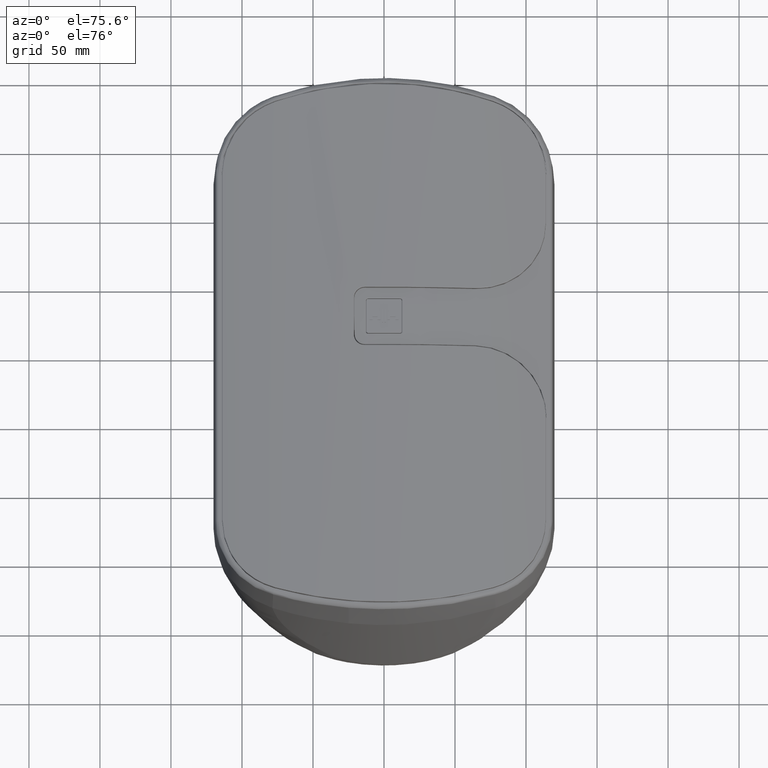
[diagram: clean part render]
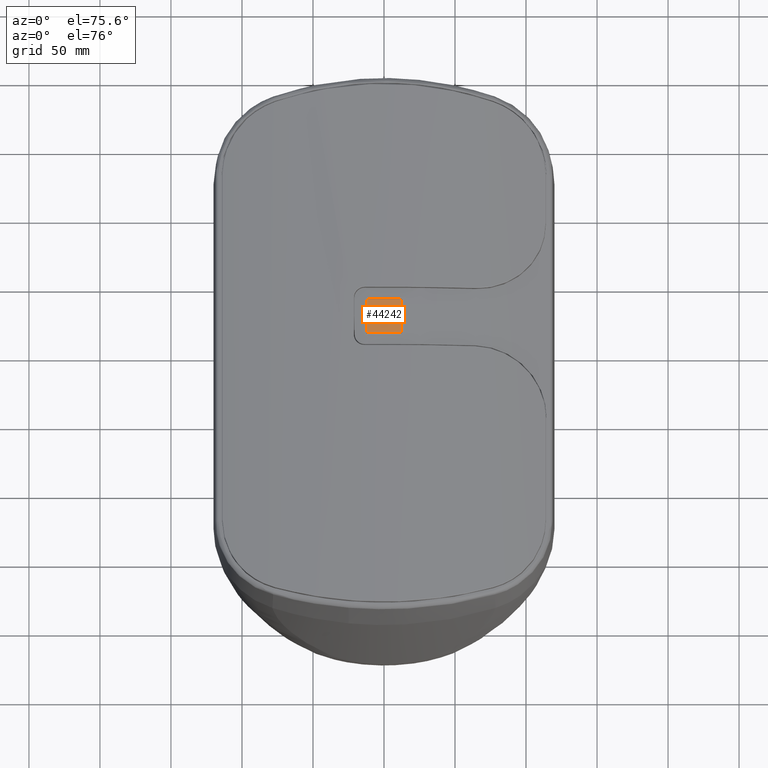
[diagram: same view with one face highlighted and labeled with its STEP entity id]
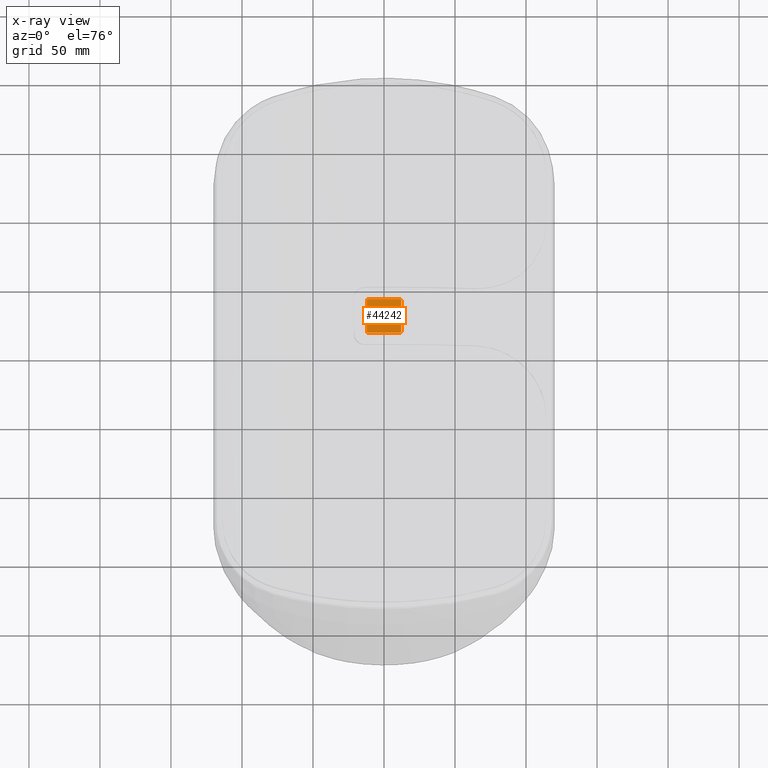
[diagram: x-ray of the same camera — body ghosted, the highlighted face saturated]
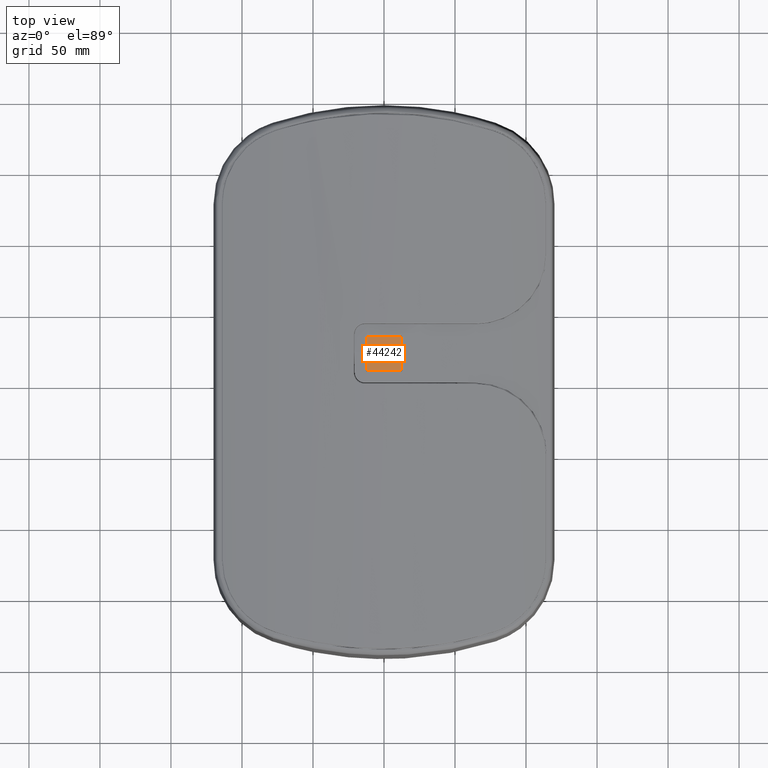
[diagram: same view with one face highlighted and labeled with its STEP entity id]
A machine part, auxiliary view. The second image highlights one B-rep face of the part: STEP entity #44242.
The next image is the same camera in x-ray: the body ghosted, the highlighted face saturated — about 0% of this face is hidden behind the body in this view.
A second angle (top view) of the same face is appended — the face is thin or edge-on in the first view.
In plain terms, the highlighted planar face has unit normal (-0, -0, -1).
Its self-contained STEP definition (entity closure, byte-faithful):
#75 = VERTEX_POINT ( 'NONE', #49523 ) ;
#331 = VERTEX_POINT ( 'NONE', #61434 ) ;
#480 = ORIENTED_EDGE ( 'NONE', *, *, #21752, .F. ) ;
#667 = DIRECTION ( 'NONE',  ( 1.000000000000000000, 5.752909486657777712E-15, 0.0000000000000000000 ) ) ;
#714 = DIRECTION ( 'NONE',  ( -0.0000000000000000000, 5.860545718086125789E-66, 1.000000000000000000 ) ) ;
#806 = ORIENTED_EDGE ( 'NONE', *, *, #60526, .F. ) ;
#822 = VECTOR ( 'NONE', #17895, 1000.000000000000000 ) ;
#1727 = AXIS2_PLACEMENT_3D ( 'NONE', #4709, #48869, #14673 ) ;
#1789 = ORIENTED_EDGE ( 'NONE', *, *, #8905, .F. ) ;
#1853 = AXIS2_PLACEMENT_3D ( 'NONE', #49115, #14604, #39102 ) ;
#2039 = VECTOR ( 'NONE', #36664, 1000.000000000000000 ) ;
#2110 = VECTOR ( 'NONE', #22423, 1000.000000000000000 ) ;
#2516 = CARTESIAN_POINT ( 'NONE',  ( 11.17499999999997229, 59.23523077837343465, 316.9999999999985221 ) ) ;
#2668 = VERTEX_POINT ( 'NONE', #3520 ) ;
#3054 = EDGE_CURVE ( 'NONE', #9763, #9864, #38522, .T. ) ;
#3420 = DIRECTION ( 'NONE',  ( -5.373402872652655282E-132, -5.860545718086125789E-66, -1.000000000000000000 ) ) ;
#3520 = CARTESIAN_POINT ( 'NONE',  ( 12.17499999999997407, 81.58523077837344317, 316.9999999999985221 ) ) ;
#3834 = CARTESIAN_POINT ( 'NONE',  ( 1.400000000000007905, 70.41023077837344601, 316.9999999999985221 ) ) ;
#4071 = VERTEX_POINT ( 'NONE', #53803 ) ;
#4217 = CARTESIAN_POINT ( 'NONE',  ( -4.440000000000068781, 69.63023077837343067, 316.9999999999985221 ) ) ;
#4307 = EDGE_LOOP ( 'NONE', ( #26245, #8414, #24439, #8950, #55774, #6894, #19021, #32851 ) ) ;
#4340 = DIRECTION ( 'NONE',  ( 1.000000000000000000, -8.838604667001395325E-17, 0.0000000000000000000 ) ) ;
#4386 = ORIENTED_EDGE ( 'NONE', *, *, #36080, .F. ) ;
#4709 = CARTESIAN_POINT ( 'NONE',  ( -11.17500000000002913, 81.58523077837344317, 316.9999999999985221 ) ) ;
#4742 = LINE ( 'NONE', #14708, #31885 ) ;
#4792 = ORIENTED_EDGE ( 'NONE', *, *, #57347, .F. ) ;
#5033 = CARTESIAN_POINT ( 'NONE',  ( 4.439999999999994174, 71.19023077837344715, 316.9999999999986358 ) ) ;
#5170 = CARTESIAN_POINT ( 'NONE',  ( -10.08000000000006224, 70.41023077837350286, 316.9999999999985221 ) ) ;
#5545 = DIRECTION ( 'NONE',  ( -1.000000000000000000, 9.168775624546178607E-67, 0.0000000000000000000 ) ) ;
#5886 = VERTEX_POINT ( 'NONE', #62508 ) ;
#5957 = VECTOR ( 'NONE', #46463, 1000.000000000000000 ) ;
#6224 = VERTEX_POINT ( 'NONE', #52744 ) ;
#6289 = ORIENTED_EDGE ( 'NONE', *, *, #30173, .F. ) ;
#6457 = CARTESIAN_POINT ( 'NONE',  ( -1.400000000000061195, 70.41023077837344601, 316.9999999999985221 ) ) ;
#6689 = DIRECTION ( 'NONE',  ( -1.000000000000000000, 9.168775624546178607E-67, 0.0000000000000000000 ) ) ;
#6894 = ORIENTED_EDGE ( 'NONE', *, *, #40860, .T. ) ;
#7034 = AXIS2_PLACEMENT_3D ( 'NONE', #33073, #3420, #23080 ) ;
#7469 = CARTESIAN_POINT ( 'NONE',  ( -3.382710778154773834E-14, 65.66023077837343180, 316.9999999999985221 ) ) ;
#7519 = CARTESIAN_POINT ( 'NONE',  ( 2.480000000000032401, 67.61023077837339201, 316.9999999999985221 ) ) ;
#7787 = LINE ( 'NONE', #7469, #47266 ) ;
#7960 = ORIENTED_EDGE ( 'NONE', *, *, #13370, .F. ) ;
#8084 = LINE ( 'NONE', #31934, #9087 ) ;
#8148 = VECTOR ( 'NONE', #50283, 1000.000000000000000 ) ;
#8414 = ORIENTED_EDGE ( 'NONE', *, *, #24699, .T. ) ;
#8449 = EDGE_CURVE ( 'NONE', #13659, #24833, #22655, .T. ) ;
#8905 = EDGE_CURVE ( 'NONE', #6224, #31372, #34048, .T. ) ;
#8950 = ORIENTED_EDGE ( 'NONE', *, *, #47466, .T. ) ;
#9087 = VECTOR ( 'NONE', #41603, 1000.000000000000000 ) ;
#9181 = CARTESIAN_POINT ( 'NONE',  ( -2.905661822261151883E-14, 69.63023077837343067, 316.9999999999985221 ) ) ;
#9384 = DIRECTION ( 'NONE',  ( -6.814985084194599863E-15, -1.000000000000000000, 0.0000000000000000000 ) ) ;
#9514 = CARTESIAN_POINT ( 'NONE',  ( -0.5400000000000300115, 65.66023077837343180, 316.9999999999985221 ) ) ;
#9763 = VERTEX_POINT ( 'NONE', #41066 ) ;
#9864 = VERTEX_POINT ( 'NONE', #19122 ) ;
#11096 = EDGE_CURVE ( 'NONE', #47290, #53807, #33160, .T. ) ;
#12085 = FACE_BOUND ( 'NONE', #47712, .T. ) ;
#12597 = CARTESIAN_POINT ( 'NONE',  ( 8.119999999999999218, 70.41023077837350286, 316.9999999999985221 ) ) ;
#12722 = LINE ( 'NONE', #18207, #2110 ) ;
#13099 = VECTOR ( 'NONE', #19525, 1000.000000000000000 ) ;
#13250 = EDGE_CURVE ( 'NONE', #75, #26878, #60355, .T. ) ;
#13370 = EDGE_CURVE ( 'NONE', #52446, #47290, #7787, .T. ) ;
#13497 = VECTOR ( 'NONE', #21647, 1000.000000000000000 ) ;
#13659 = VERTEX_POINT ( 'NONE', #47375 ) ;
#14065 = EDGE_CURVE ( 'NONE', #53807, #55710, #32789, .T. ) ;
#14156 = DIRECTION ( 'NONE',  ( -6.870191984066429027E-15, -1.000000000000000000, 0.0000000000000000000 ) ) ;
#14509 = CARTESIAN_POINT ( 'NONE',  ( -11.17500000000002913, 82.58523077837342896, 316.9999999999985221 ) ) ;
#14604 = DIRECTION ( 'NONE',  ( -0.0000000000000000000, 5.860545718086125789E-66, 1.000000000000000000 ) ) ;
#14665 = CARTESIAN_POINT ( 'NONE',  ( -12.17500000000002558, 70.41023077837344601, 316.9999999999985221 ) ) ;
#14673 = DIRECTION ( 'NONE',  ( -1.000000000000000000, 0.0000000000000000000, 0.0000000000000000000 ) ) ;
#14708 = CARTESIAN_POINT ( 'NONE',  ( 0.5399999999999736122, 70.41023077837344601, 316.9999999999985221 ) ) ;
#14739 = DIRECTION ( 'NONE',  ( -1.000000000000000000, 9.168775624546178607E-67, 0.0000000000000000000 ) ) ;
#15940 = DIRECTION ( 'NONE',  ( 1.000000000000000000, 1.008560160451554173E-15, 0.0000000000000000000 ) ) ;
#16364 = CIRCLE ( 'NONE', #43168, 1.000000000000000888 ) ;
#16389 = EDGE_CURVE ( 'NONE', #47969, #26580, #31454, .T. ) ;
#16671 = DIRECTION ( 'NONE',  ( -0.0000000000000000000, 5.860545718086125789E-66, 1.000000000000000000 ) ) ;
#16796 = DIRECTION ( 'NONE',  ( -1.000000000000000000, 0.0000000000000000000, 0.0000000000000000000 ) ) ;
#16992 = CARTESIAN_POINT ( 'NONE',  ( 4.770489558936219510E-15, 75.16023077837344601, 316.9999999999985221 ) ) ;
#17232 = VERTEX_POINT ( 'NONE', #56155 ) ;
#17249 = FACE_BOUND ( 'NONE', #28947, .T. ) ;
#17301 = ORIENTED_EDGE ( 'NONE', *, *, #16389, .F. ) ;
#17417 = VECTOR ( 'NONE', #6689, 1000.000000000000000 ) ;
#17428 = VERTEX_POINT ( 'NONE', #4217 ) ;
#17432 = DIRECTION ( 'NONE',  ( 8.587739980083156387E-15, -1.000000000000000000, 0.0000000000000000000 ) ) ;
#17805 = CARTESIAN_POINT ( 'NONE',  ( -8.120000000000082707, 67.61023077837343465, 316.9999999999986358 ) ) ;
#17828 = ORIENTED_EDGE ( 'NONE', *, *, #29758, .F. ) ;
#17841 = CARTESIAN_POINT ( 'NONE',  ( -8.120000000000057838, 71.19023077837344715, 316.9999999999986358 ) ) ;
#17895 = DIRECTION ( 'NONE',  ( 1.000000000000000000, -9.168775624546178607E-67, 0.0000000000000000000 ) ) ;
#18207 = CARTESIAN_POINT ( 'NONE',  ( -1.344410693882025498E-14, 67.61023077837339201, 316.9999999999985221 ) ) ;
#18334 = ORIENTED_EDGE ( 'NONE', *, *, #20427, .F. ) ;
#18700 = VECTOR ( 'NONE', #17432, 1000.000000000000000 ) ;
#19021 = ORIENTED_EDGE ( 'NONE', *, *, #13250, .T. ) ;
#19122 = CARTESIAN_POINT ( 'NONE',  ( -12.17500000000002558, 59.23523077837343465, 316.9999999999985221 ) ) ;
#19302 = EDGE_CURVE ( 'NONE', #31372, #48039, #44705, .T. ) ;
#19336 = EDGE_CURVE ( 'NONE', #55710, #52446, #4742, .T. ) ;
#19525 = DIRECTION ( 'NONE',  ( 9.168775624546446115E-67, -1.000000000000000000, -1.758163715425837737E-65 ) ) ;
#19642 = EDGE_CURVE ( 'NONE', #46892, #2668, #32093, .T. ) ;
#19914 = VERTEX_POINT ( 'NONE', #9514 ) ;
#19931 = CARTESIAN_POINT ( 'NONE',  ( 8.119999999999995666, 71.19023077837344715, 316.9999999999985221 ) ) ;
#20160 = ORIENTED_EDGE ( 'NONE', *, *, #40173, .F. ) ;
#20195 = VECTOR ( 'NONE', #55437, 1000.000000000000000 ) ;
#20229 = VECTOR ( 'NONE', #15940, 1000.000000000000000 ) ;
#20427 = EDGE_CURVE ( 'NONE', #17428, #13659, #28028, .T. ) ;
#20485 = CARTESIAN_POINT ( 'NONE',  ( -2.385244779468109755E-14, 65.66023077837343180, 316.9999999999985221 ) ) ;
#20691 = EDGE_CURVE ( 'NONE', #47488, #21756, #42075, .T. ) ;
#20932 = CARTESIAN_POINT ( 'NONE',  ( -8.120000000000063167, 70.41023077837348865, 316.9999999999986358 ) ) ;
#21139 = EDGE_CURVE ( 'NONE', #24833, #47371, #22354, .T. ) ;
#21195 = CARTESIAN_POINT ( 'NONE',  ( -2.905661822261151883E-14, 73.21023077837344317, 316.9999999999985221 ) ) ;
#21313 = LINE ( 'NONE', #36454, #5957 ) ;
#21321 = CARTESIAN_POINT ( 'NONE',  ( -2.905661822261151883E-14, 82.58523077837342896, 316.9999999999985221 ) ) ;
#21644 = VECTOR ( 'NONE', #33361, 1000.000000000000000 ) ;
#21647 = DIRECTION ( 'NONE',  ( -1.000000000000000000, 9.168775624546178607E-67, 0.0000000000000000000 ) ) ;
#21752 = EDGE_CURVE ( 'NONE', #21756, #47969, #8084, .T. ) ;
#21756 = VERTEX_POINT ( 'NONE', #51301 ) ;
#21775 = LINE ( 'NONE', #20485, #20229 ) ;
#21811 = DIRECTION ( 'NONE',  ( 8.518731355243248448E-15, -1.000000000000000000, 0.0000000000000000000 ) ) ;
#22057 = VERTEX_POINT ( 'NONE', #58983 ) ;
#22093 = VECTOR ( 'NONE', #26087, 1000.000000000000000 ) ;
#22145 = VECTOR ( 'NONE', #43224, 1000.000000000000000 ) ;
#22293 = CARTESIAN_POINT ( 'NONE',  ( -2.480000000000083027, 67.61023077837339201, 316.9999999999985221 ) ) ;
#22354 = LINE ( 'NONE', #62030, #61834 ) ;
#22423 = DIRECTION ( 'NONE',  ( 1.000000000000000000, 5.531643737170955672E-15, 0.0000000000000000000 ) ) ;
#22609 = CARTESIAN_POINT ( 'NONE',  ( -0.5400000000000283462, 70.41023077837344601, 316.9999999999985221 ) ) ;
#22655 = LINE ( 'NONE', #37139, #55633 ) ;
#22944 = CARTESIAN_POINT ( 'NONE',  ( -10.08000000000004448, 73.21023077837344317, 316.9999999999985221 ) ) ;
#23080 = DIRECTION ( 'NONE',  ( -1.000000000000000000, 9.168775624546178607E-67, 0.0000000000000000000 ) ) ;
#23233 = ORIENTED_EDGE ( 'NONE', *, *, #11096, .F. ) ;
#23483 = DIRECTION ( 'NONE',  ( -6.710640814962910492E-15, 1.000000000000000000, 0.0000000000000000000 ) ) ;
#23911 = LINE ( 'NONE', #43592, #62965 ) ;
#24105 = VECTOR ( 'NONE', #55128, 1000.000000000000000 ) ;
#24166 = ORIENTED_EDGE ( 'NONE', *, *, #63219, .F. ) ;
#24428 = VERTEX_POINT ( 'NONE', #17841 ) ;
#24433 = LINE ( 'NONE', #39245, #52979 ) ;
#24439 = ORIENTED_EDGE ( 'NONE', *, *, #56590, .T. ) ;
#24699 = EDGE_CURVE ( 'NONE', #2668, #22057, #28188, .T. ) ;
#24833 = VERTEX_POINT ( 'NONE', #22293 ) ;
#24985 = VERTEX_POINT ( 'NONE', #14509 ) ;
#25072 = EDGE_CURVE ( 'NONE', #331, #24428, #24433, .T. ) ;
#25132 = CARTESIAN_POINT ( 'NONE',  ( -4.440000000000041247, 73.21023077837345738, 316.9999999999985221 ) ) ;
#26087 = DIRECTION ( 'NONE',  ( -7.304098846218134470E-15, -1.000000000000000000, 0.0000000000000000000 ) ) ;
#26196 = CARTESIAN_POINT ( 'NONE',  ( -4.813857645835639687E-14, 67.61023077837337780, 316.9999999999985221 ) ) ;
#26245 = ORIENTED_EDGE ( 'NONE', *, *, #19642, .T. ) ;
#26357 = CARTESIAN_POINT ( 'NONE',  ( 8.120000000000006324, 69.63023077837343067, 316.9999999999985221 ) ) ;
#26580 = VERTEX_POINT ( 'NONE', #7519 ) ;
#26728 = ORIENTED_EDGE ( 'NONE', *, *, #42378, .F. ) ;
#26737 = CARTESIAN_POINT ( 'NONE',  ( -8.120000000000068496, 69.63023077837343067, 316.9999999999986358 ) ) ;
#26878 = VERTEX_POINT ( 'NONE', #37069 ) ;
#26917 = FACE_BOUND ( 'NONE', #53727, .T. ) ;
#27550 = VECTOR ( 'NONE', #667, 1000.000000000000000 ) ;
#27893 = CARTESIAN_POINT ( 'NONE',  ( -2.905661822261151883E-14, 69.63023077837343067, 316.9999999999985221 ) ) ;
#27999 = VERTEX_POINT ( 'NONE', #49937 ) ;
#28028 = LINE ( 'NONE', #58339, #38144 ) ;
#28107 = CARTESIAN_POINT ( 'NONE',  ( 10.08000000000002316, 67.61023077837344886, 316.9999999999985221 ) ) ;
#28188 = CIRCLE ( 'NONE', #57029, 1.000000000000000888 ) ;
#28351 = ORIENTED_EDGE ( 'NONE', *, *, #19336, .F. ) ;
#28947 = EDGE_LOOP ( 'NONE', ( #4792, #51430, #46414, #60198, #17301, #480, #30369, #56805, #17828, #37127, #31690, #20160 ) ) ;
#29038 = EDGE_CURVE ( 'NONE', #56011, #47488, #55189, .T. ) ;
#29092 = LINE ( 'NONE', #48759, #48186 ) ;
#29308 = VECTOR ( 'NONE', #56869, 1000.000000000000000 ) ;
#29381 = CARTESIAN_POINT ( 'NONE',  ( -1.257674520083185143E-14, 67.61023077837339201, 316.9999999999985221 ) ) ;
#29496 = LINE ( 'NONE', #56559, #29308 ) ;
#29758 = EDGE_CURVE ( 'NONE', #27999, #56011, #29496, .T. ) ;
#29967 = LINE ( 'NONE', #20932, #24105 ) ;
#30173 = EDGE_CURVE ( 'NONE', #19914, #34339, #33220, .T. ) ;
#30369 = ORIENTED_EDGE ( 'NONE', *, *, #20691, .F. ) ;
#30402 = VECTOR ( 'NONE', #4340, 1000.000000000000000 ) ;
#30975 = CARTESIAN_POINT ( 'NONE',  ( -2.905661822261151883E-14, 71.19023077837344715, 316.9999999999985221 ) ) ;
#31002 = VERTEX_POINT ( 'NONE', #26357 ) ;
#31372 = VERTEX_POINT ( 'NONE', #17805 ) ;
#31454 = LINE ( 'NONE', #40806, #52711 ) ;
#31690 = ORIENTED_EDGE ( 'NONE', *, *, #56211, .F. ) ;
#31885 = VECTOR ( 'NONE', #44084, 1000.000000000000000 ) ;
#31934 = CARTESIAN_POINT ( 'NONE',  ( -8.543513119185774940E-14, 73.21023077837335791, 316.9999999999985221 ) ) ;
#32077 = FACE_BOUND ( 'NONE', #61998, .T. ) ;
#32093 = LINE ( 'NONE', #57232, #21644 ) ;
#32149 = ORIENTED_EDGE ( 'NONE', *, *, #51598, .F. ) ;
#32729 = DIRECTION ( 'NONE',  ( -4.293869990041608959E-15, 1.000000000000000000, 0.0000000000000000000 ) ) ;
#32789 = LINE ( 'NONE', #16992, #2039 ) ;
#32851 = ORIENTED_EDGE ( 'NONE', *, *, #53237, .T. ) ;
#33073 = CARTESIAN_POINT ( 'NONE',  ( -2.905661822261151883E-14, 70.41023077837344601, 316.9999999999985221 ) ) ;
#33160 = LINE ( 'NONE', #3834, #60365 ) ;
#33220 = LINE ( 'NONE', #22609, #22145 ) ;
#33361 = DIRECTION ( 'NONE',  ( -9.168775624546446115E-67, 1.000000000000000000, 1.758163715425837737E-65 ) ) ;
#33633 = CIRCLE ( 'NONE', #1853, 1.000000000000000888 ) ;
#33968 = LINE ( 'NONE', #9181, #30402 ) ;
#34048 = LINE ( 'NONE', #26196, #53610 ) ;
#34339 = VERTEX_POINT ( 'NONE', #46686 ) ;
#34906 = ORIENTED_EDGE ( 'NONE', *, *, #14065, .F. ) ;
#35437 = CARTESIAN_POINT ( 'NONE',  ( -4.440000000000059899, 70.41023077837346023, 316.9999999999985221 ) ) ;
#35690 = VERTEX_POINT ( 'NONE', #50337 ) ;
#35694 = ORIENTED_EDGE ( 'NONE', *, *, #41487, .F. ) ;
#35738 = LINE ( 'NONE', #59932, #20195 ) ;
#36080 = EDGE_CURVE ( 'NONE', #47371, #46505, #35738, .T. ) ;
#36454 = CARTESIAN_POINT ( 'NONE',  ( 4.439999999999995950, 70.41023077837348865, 316.9999999999986358 ) ) ;
#36664 = DIRECTION ( 'NONE',  ( -1.000000000000000000, 7.059921123161401436E-15, 0.0000000000000000000 ) ) ;
#37069 = CARTESIAN_POINT ( 'NONE',  ( 11.17499999999997584, 58.23523077837344175, 316.9999999999985221 ) ) ;
#37127 = ORIENTED_EDGE ( 'NONE', *, *, #46031, .F. ) ;
#37139 = CARTESIAN_POINT ( 'NONE',  ( -4.943961906533900219E-14, 67.61023077837336359, 316.9999999999985221 ) ) ;
#37419 = DIRECTION ( 'NONE',  ( 1.000000000000000000, -1.008560160451554173E-15, 0.0000000000000000000 ) ) ;
#37939 = VECTOR ( 'NONE', #54347, 1000.000000000000000 ) ;
#38144 = VECTOR ( 'NONE', #14156, 1000.000000000000000 ) ;
#38374 = VERTEX_POINT ( 'NONE', #45821 ) ;
#38522 = LINE ( 'NONE', #14665, #13099 ) ;
#38845 = CARTESIAN_POINT ( 'NONE',  ( -2.905661822261151883E-14, 58.23523077837344175, 316.9999999999985221 ) ) ;
#39042 = LINE ( 'NONE', #29381, #27550 ) ;
#39102 = DIRECTION ( 'NONE',  ( -1.000000000000000000, 0.0000000000000000000, 0.0000000000000000000 ) ) ;
#39245 = CARTESIAN_POINT ( 'NONE',  ( -2.905661822261151883E-14, 71.19023077837344715, 316.9999999999985221 ) ) ;
#40173 = EDGE_CURVE ( 'NONE', #44753, #63656, #39042, .T. ) ;
#40216 = ORIENTED_EDGE ( 'NONE', *, *, #21139, .F. ) ;
#40806 = CARTESIAN_POINT ( 'NONE',  ( 2.480000000000008420, 70.41023077837346023, 316.9999999999985221 ) ) ;
#40854 = DIRECTION ( 'NONE',  ( -1.000000000000000000, 0.0000000000000000000, 0.0000000000000000000 ) ) ;
#40860 = EDGE_CURVE ( 'NONE', #9864, #75, #33633, .T. ) ;
#41066 = CARTESIAN_POINT ( 'NONE',  ( -12.17500000000002558, 81.58523077837344317, 316.9999999999985221 ) ) ;
#41487 = EDGE_CURVE ( 'NONE', #4071, #19914, #21775, .T. ) ;
#41603 = DIRECTION ( 'NONE',  ( -1.000000000000000000, -2.013518320330221529E-14, 0.0000000000000000000 ) ) ;
#41900 = VECTOR ( 'NONE', #54140, 1000.000000000000000 ) ;
#41923 = LINE ( 'NONE', #21321, #13497 ) ;
#42075 = LINE ( 'NONE', #61775, #50492 ) ;
#42378 = EDGE_CURVE ( 'NONE', #34339, #38374, #44451, .T. ) ;
#42490 = DIRECTION ( 'NONE',  ( -1.000000000000000000, 9.168775624546178607E-67, 0.0000000000000000000 ) ) ;
#43168 = AXIS2_PLACEMENT_3D ( 'NONE', #2516, #16671, #40854 ) ;
#43224 = DIRECTION ( 'NONE',  ( 2.739037067331798158E-16, 1.000000000000000000, 0.0000000000000000000 ) ) ;
#43592 = CARTESIAN_POINT ( 'NONE',  ( 10.08000000000000540, 70.41023077837350286, 316.9999999999985221 ) ) ;
#43709 = ORIENTED_EDGE ( 'NONE', *, *, #44784, .F. ) ;
#44084 = DIRECTION ( 'NONE',  ( 9.168775624546446115E-67, -1.000000000000000000, -1.758163715425837737E-65 ) ) ;
#44242 = ADVANCED_FACE ( 'NONE', ( #46603, #12085, #17249, #32077, #26917 ), #61154, .F. ) ;
#44451 = LINE ( 'NONE', #49601, #41900 ) ;
#44698 = EDGE_CURVE ( 'NONE', #47021, #6224, #48687, .T. ) ;
#44705 = LINE ( 'NONE', #48902, #53498 ) ;
#44753 = VERTEX_POINT ( 'NONE', #46415 ) ;
#44784 = EDGE_CURVE ( 'NONE', #46505, #331, #51565, .T. ) ;
#45364 = CARTESIAN_POINT ( 'NONE',  ( 0.5399999999999736122, 65.66023077837343180, 316.9999999999985221 ) ) ;
#45534 = ORIENTED_EDGE ( 'NONE', *, *, #8449, .F. ) ;
#45821 = CARTESIAN_POINT ( 'NONE',  ( -1.400000000000026334, 75.16023077837344601, 316.9999999999985221 ) ) ;
#46031 = EDGE_CURVE ( 'NONE', #5886, #27999, #51179, .T. ) ;
#46414 = ORIENTED_EDGE ( 'NONE', *, *, #50966, .F. ) ;
#46415 = CARTESIAN_POINT ( 'NONE',  ( 8.120000000000022311, 67.61023077837343465, 316.9999999999985221 ) ) ;
#46463 = DIRECTION ( 'NONE',  ( -1.073467497510382873E-14, 1.000000000000000000, 0.0000000000000000000 ) ) ;
#46505 = VERTEX_POINT ( 'NONE', #25132 ) ;
#46603 = FACE_OUTER_BOUND ( 'NONE', #4307, .T. ) ;
#46686 = CARTESIAN_POINT ( 'NONE',  ( -0.5400000000000274580, 75.16023077837344601, 316.9999999999985221 ) ) ;
#46892 = VERTEX_POINT ( 'NONE', #63640 ) ;
#47021 = VERTEX_POINT ( 'NONE', #22944 ) ;
#47266 = VECTOR ( 'NONE', #37419, 1000.000000000000000 ) ;
#47290 = VERTEX_POINT ( 'NONE', #56420 ) ;
#47371 = VERTEX_POINT ( 'NONE', #55784 ) ;
#47375 = CARTESIAN_POINT ( 'NONE',  ( -4.440000000000082991, 67.61023077837340622, 316.9999999999985221 ) ) ;
#47466 = EDGE_CURVE ( 'NONE', #24985, #9763, #60455, .T. ) ;
#47488 = VERTEX_POINT ( 'NONE', #5033 ) ;
#47712 = EDGE_LOOP ( 'NONE', ( #35694, #58389, #26728, #6289 ) ) ;
#47765 = ORIENTED_EDGE ( 'NONE', *, *, #44698, .F. ) ;
#47969 = VERTEX_POINT ( 'NONE', #56734 ) ;
#48039 = VERTEX_POINT ( 'NONE', #26737 ) ;
#48186 = VECTOR ( 'NONE', #5545, 1000.000000000000000 ) ;
#48578 = DIRECTION ( 'NONE',  ( 6.870191984066515012E-15, 1.000000000000000000, 0.0000000000000000000 ) ) ;
#48687 = LINE ( 'NONE', #5170, #57480 ) ;
#48759 = CARTESIAN_POINT ( 'NONE',  ( -2.905661822261151883E-14, 73.21023077837344317, 316.9999999999985221 ) ) ;
#48869 = DIRECTION ( 'NONE',  ( -0.0000000000000000000, 5.860545718086125789E-66, 1.000000000000000000 ) ) ;
#48902 = CARTESIAN_POINT ( 'NONE',  ( -8.120000000000063167, 70.41023077837348865, 316.9999999999986358 ) ) ;
#49115 = CARTESIAN_POINT ( 'NONE',  ( -11.17500000000002913, 59.23523077837343465, 316.9999999999985221 ) ) ;
#49523 = CARTESIAN_POINT ( 'NONE',  ( -11.17500000000002913, 58.23523077837344175, 316.9999999999985221 ) ) ;
#49601 = CARTESIAN_POINT ( 'NONE',  ( -6.245004513516505540E-14, 75.16023077837344601, 316.9999999999985221 ) ) ;
#49937 = CARTESIAN_POINT ( 'NONE',  ( 8.119999999999985008, 73.21023077837344317, 316.9999999999985221 ) ) ;
#50283 = DIRECTION ( 'NONE',  ( -6.870191984066469258E-15, -1.000000000000000000, 0.0000000000000000000 ) ) ;
#50337 = CARTESIAN_POINT ( 'NONE',  ( 4.440000000000004832, 69.63023077837343067, 316.9999999999986358 ) ) ;
#50492 = VECTOR ( 'NONE', #32729, 1000.000000000000000 ) ;
#50627 = LINE ( 'NONE', #6457, #22093 ) ;
#50732 = DIRECTION ( 'NONE',  ( 1.000000000000000000, -6.859238234091966795E-15, 0.0000000000000000000 ) ) ;
#50966 = EDGE_CURVE ( 'NONE', #54993, #35690, #21313, .T. ) ;
#51044 = DIRECTION ( 'NONE',  ( 1.000000000000000000, -7.301769733065640851E-15, 0.0000000000000000000 ) ) ;
#51179 = LINE ( 'NONE', #21195, #17417 ) ;
#51301 = CARTESIAN_POINT ( 'NONE',  ( 4.439999999999985292, 73.21023077837344317, 316.9999999999986358 ) ) ;
#51383 = DIRECTION ( 'NONE',  ( 7.434529182757744014E-15, 1.000000000000000000, 0.0000000000000000000 ) ) ;
#51417 = EDGE_CURVE ( 'NONE', #35690, #31002, #61460, .T. ) ;
#51430 = ORIENTED_EDGE ( 'NONE', *, *, #51417, .F. ) ;
#51507 = ORIENTED_EDGE ( 'NONE', *, *, #25072, .F. ) ;
#51565 = LINE ( 'NONE', #35437, #8148 ) ;
#51598 = EDGE_CURVE ( 'NONE', #17232, #47021, #29092, .T. ) ;
#51689 = CARTESIAN_POINT ( 'NONE',  ( 1.399999999999975930, 75.16023077837344601, 316.9999999999985221 ) ) ;
#51972 = ORIENTED_EDGE ( 'NONE', *, *, #19302, .F. ) ;
#52446 = VERTEX_POINT ( 'NONE', #45364 ) ;
#52711 = VECTOR ( 'NONE', #21811, 1000.000000000000000 ) ;
#52744 = CARTESIAN_POINT ( 'NONE',  ( -10.08000000000008178, 67.61023077837344886, 316.9999999999985221 ) ) ;
#52969 = CARTESIAN_POINT ( 'NONE',  ( 0.5399999999999736122, 75.16023077837344601, 316.9999999999985221 ) ) ;
#52979 = VECTOR ( 'NONE', #14739, 1000.000000000000000 ) ;
#53237 = EDGE_CURVE ( 'NONE', #26878, #46892, #16364, .T. ) ;
#53498 = VECTOR ( 'NONE', #48578, 1000.000000000000000 ) ;
#53610 = VECTOR ( 'NONE', #50732, 1000.000000000000000 ) ;
#53727 = EDGE_LOOP ( 'NONE', ( #45534, #18334, #24166, #51972, #1789, #47765, #32149, #806, #51507, #43709, #4386, #40216 ) ) ;
#53803 = CARTESIAN_POINT ( 'NONE',  ( -1.400000000000095834, 65.66023077837343180, 316.9999999999985221 ) ) ;
#53807 = VERTEX_POINT ( 'NONE', #51689 ) ;
#54060 = VECTOR ( 'NONE', #42490, 1000.000000000000000 ) ;
#54140 = DIRECTION ( 'NONE',  ( -1.000000000000000000, -7.059921123161427469E-15, 0.0000000000000000000 ) ) ;
#54347 = DIRECTION ( 'NONE',  ( 1.000000000000000000, -9.168775624546178607E-67, 0.0000000000000000000 ) ) ;
#54545 = EDGE_CURVE ( 'NONE', #26580, #54993, #12722, .T. ) ;
#54993 = VERTEX_POINT ( 'NONE', #60327 ) ;
#55128 = DIRECTION ( 'NONE',  ( 6.870191984066563922E-15, 1.000000000000000000, 0.0000000000000000000 ) ) ;
#55189 = LINE ( 'NONE', #30975, #54060 ) ;
#55437 = DIRECTION ( 'NONE',  ( -1.000000000000000000, 4.093416365506495585E-14, 0.0000000000000000000 ) ) ;
#55633 = VECTOR ( 'NONE', #51044, 1000.000000000000000 ) ;
#55710 = VERTEX_POINT ( 'NONE', #52969 ) ;
#55774 = ORIENTED_EDGE ( 'NONE', *, *, #3054, .T. ) ;
#55784 = CARTESIAN_POINT ( 'NONE',  ( -2.480000000000041283, 73.21023077837338633, 316.9999999999985221 ) ) ;
#55854 = CARTESIAN_POINT ( 'NONE',  ( 11.17499999999997584, 81.58523077837344317, 316.9999999999985221 ) ) ;
#56011 = VERTEX_POINT ( 'NONE', #19931 ) ;
#56155 = CARTESIAN_POINT ( 'NONE',  ( -8.120000000000043627, 73.21023077837344317, 316.9999999999986358 ) ) ;
#56211 = EDGE_CURVE ( 'NONE', #63656, #5886, #23911, .T. ) ;
#56420 = CARTESIAN_POINT ( 'NONE',  ( 1.400000000000040101, 65.66023077837343180, 316.9999999999985221 ) ) ;
#56559 = CARTESIAN_POINT ( 'NONE',  ( 8.119999999999999218, 70.41023077837347444, 316.9999999999985221 ) ) ;
#56590 = EDGE_CURVE ( 'NONE', #22057, #24985, #41923, .T. ) ;
#56734 = CARTESIAN_POINT ( 'NONE',  ( 2.479999999999983995, 73.21023077837340054, 316.9999999999985221 ) ) ;
#56805 = ORIENTED_EDGE ( 'NONE', *, *, #29038, .F. ) ;
#56869 = DIRECTION ( 'NONE',  ( 5.152643988049920969E-15, -1.000000000000000000, 0.0000000000000000000 ) ) ;
#57029 = AXIS2_PLACEMENT_3D ( 'NONE', #55854, #714, #16796 ) ;
#57232 = CARTESIAN_POINT ( 'NONE',  ( 12.17499999999997407, 70.41023077837344601, 316.9999999999985221 ) ) ;
#57347 = EDGE_CURVE ( 'NONE', #31002, #44753, #61631, .T. ) ;
#57480 = VECTOR ( 'NONE', #9384, 1000.000000000000000 ) ;
#58339 = CARTESIAN_POINT ( 'NONE',  ( -4.440000000000063451, 70.41023077837346023, 316.9999999999985221 ) ) ;
#58389 = ORIENTED_EDGE ( 'NONE', *, *, #61376, .F. ) ;
#58422 = DIRECTION ( 'NONE',  ( -6.814985084194599863E-15, 1.000000000000000000, 0.0000000000000000000 ) ) ;
#58983 = CARTESIAN_POINT ( 'NONE',  ( 11.17499999999997584, 82.58523077837342896, 316.9999999999985221 ) ) ;
#59932 = CARTESIAN_POINT ( 'NONE',  ( 8.586881206085195117E-14, 73.21023077837328685, 316.9999999999985221 ) ) ;
#60198 = ORIENTED_EDGE ( 'NONE', *, *, #54545, .F. ) ;
#60327 = CARTESIAN_POINT ( 'NONE',  ( 4.440000000000027036, 67.61023077837342043, 316.9999999999986358 ) ) ;
#60355 = LINE ( 'NONE', #38845, #37939 ) ;
#60365 = VECTOR ( 'NONE', #23483, 1000.000000000000000 ) ;
#60455 = CIRCLE ( 'NONE', #1727, 1.000000000000000888 ) ;
#60526 = EDGE_CURVE ( 'NONE', #24428, #17232, #29967, .T. ) ;
#61154 = PLANE ( 'NONE',  #7034 ) ;
#61376 = EDGE_CURVE ( 'NONE', #38374, #4071, #50627, .T. ) ;
#61434 = CARTESIAN_POINT ( 'NONE',  ( -4.440000000000054570, 71.19023077837344715, 316.9999999999985221 ) ) ;
#61460 = LINE ( 'NONE', #27893, #822 ) ;
#61631 = LINE ( 'NONE', #12597, #18700 ) ;
#61775 = CARTESIAN_POINT ( 'NONE',  ( 4.439999999999997726, 70.41023077837346023, 316.9999999999986358 ) ) ;
#61834 = VECTOR ( 'NONE', #51383, 1000.000000000000000 ) ;
#61998 = EDGE_LOOP ( 'NONE', ( #34906, #23233, #7960, #28351 ) ) ;
#62030 = CARTESIAN_POINT ( 'NONE',  ( -2.480000000000062155, 70.41023077837346023, 316.9999999999985221 ) ) ;
#62508 = CARTESIAN_POINT ( 'NONE',  ( 10.07999999999998408, 73.21023077837344317, 316.9999999999985221 ) ) ;
#62965 = VECTOR ( 'NONE', #58422, 1000.000000000000000 ) ;
#63219 = EDGE_CURVE ( 'NONE', #48039, #17428, #33968, .T. ) ;
#63640 = CARTESIAN_POINT ( 'NONE',  ( 12.17499999999997407, 59.23523077837343465, 316.9999999999985221 ) ) ;
#63656 = VERTEX_POINT ( 'NONE', #28107 ) ;